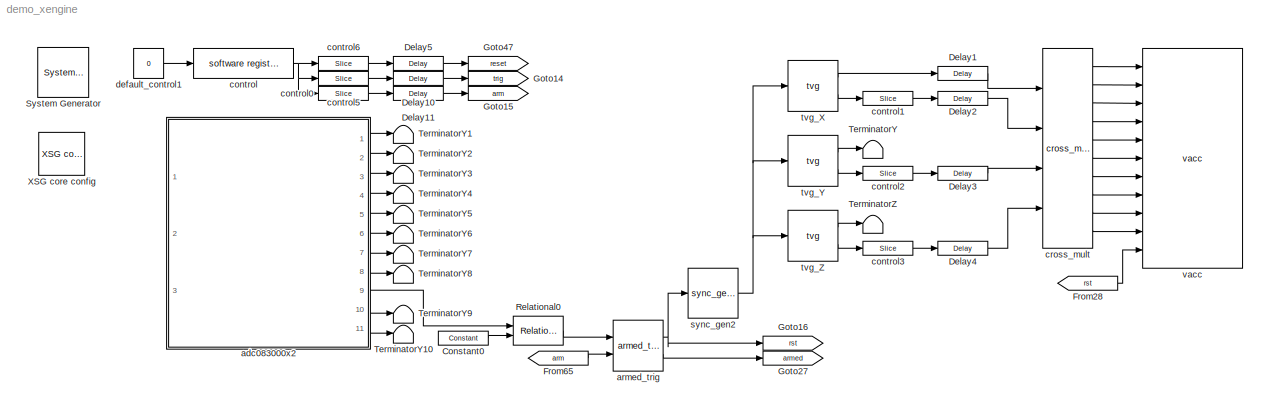
MODEL demo_xengine
KIND model
BLOCK [Reference]  System Generator  REF=xbsIndex_r4/ System Generator
  AttributesFormatString = System\\nGenerator
  FunctionWithSeparateData = off
  Ports = []
  RTWMemSecDataConstants = Inherit from model
  RTWMemSecDataInternal = Inherit from model
  RTWMemSecDataParameters = Inherit from model
  RTWMemSecFuncExecute = Inherit from model
  RTWMemSecFuncInitTerm = Inherit from model
  SID = 1
  ShowPortLabels = FromPortIcon
  SourceBlock = xbsIndex_r4/ System Generator
  SourceType = Xilinx System Generator Block
  SystemSampleTime = -1
  Tag = genX
  UserData = DataTag0
  UserDataPersistent = on
  block_type = sysgen
  block_version = 10.1.3
  clock_wrapper = Clock Enables
  core_generation = According to Block Masks
  dbl_ovrd = According to Block Masks
  dcm_input_clock_period = 100
  deprecated_control = off
  directory = ./demo_xengine/sysgen
  eval_field = 0
  has_advanced_control = 0
  incr_netlist = off
  infoedit = System Generator
  package = ff1136
  part = xc5vsx95t
  run_coregen = off
  sg_icon_stat = 51,50,-1,-1,red,beige,0,07734,right
  sg_mask_display = fprintf('','COMMENT: begin icon graphics');\npatch([0 51 51 0 ],[0 0 50 50 ],[0.93 0.92 0.86]);\npatch([12 4 16 4 12 25 29 33 47 36 25 17 29 17 25 36 47 33 29 25 12 ],[5 13 25 37 45 45 41 45 45 34 45 37 25 13 5 16 5 5 9 5 5 ],[0.6 0.2 0.25]);\nplot([0 51 51 0 0 ],[0 0 50 50 0 ]);\nfprintf('','COMMENT: end icon graphics');\nfprintf('','COMMENT: begin icon text');\nfprintf('','COMMENT: end icon text...<+5ch>
  sggui_pos = -1,-1,-1,-1
  simulink_period = 1
  speed = -1
  synthesis_tool = XST
  sysclk_period = 5
  testbench = off
  trim_vbits = Everywhere in SubSystem
  xilinxfamily = virtex5
BLOCK [Reference] Constant0  REF=xbsIndex_r4/Constant
  Ports = [0, 1]
  SID = 141
  SourceBlock = xbsIndex_r4/Constant
  SourceType = Xilinx Constant Block Block
  arith_type = Unsigned
  bin_pt = 0
  block_type = constant
  block_version = 10.1.3
  carry = CIN
  const = 0
  dbl_ovrd = off
  dsp48_infoedit = The use of this block for DSP48 instructions is deprecated.  Please use the Opmode block.
  equ = P=C
  explicit_period = on
  has_advanced_control = 0
  inp1 = P
  inp2 = PCIN>>17
  n_bits = 4
  opr = +
  opselect = C
  period = 1
  sg_icon_stat = 50,14,0,1,white,blue,0,bf4ddd8b,right,
  sg_list_contents = {'table'=>{'carry'=>'popup(0|1|CIN|~SIGN(P or PCIN)|~SIGN(A*B or A:B)|~SIGND(A*B or A:B))','inp1'=>'popup(0|P|A:B|A*B|C|P+C|A:B+C)','inp2'=>'popup(0|PCIN|P|C|PCIN>>17|P>>17)','opselect'=>'popup(C + A*B|PCIN + A*B|P + A*B|A * B|C + A:B|C - A:B|C|Custom)','userSelections'=>{'carry'=>'CIN','inp1'=>'P','inp2'=>'PCIN>>17','opselect'=>'C'}}}
  sg_mask_display = fprintf('','COMMENT: begin icon graphics');\npatch([0 1 1 0 ],[0 0 1 1 ],[0.77 0.82 0.91]);\npatch([0.42 0.38 0.44 0.38 0.42 0.5 0.52 0.54 0.62 0.56 0.5 0.46 0.52 0.46 0.5 0.56 0.62 0.54 0.52 0.5 0.42 ],[0.142857 0.285714 0.5 0.714286 0.857143 0.857143 0.785714 0.857143 0.857143 0.642857 0.857143 0.714286 0.5 0.285714 0.142857 0.357143 0.142857 0.142857 0.214286 0.142857 0.142857 ],[0.98 0.96 0.92...<+206ch>
  sggui_pos = 95,381,400,346
BLOCK [Reference] Delay1  REF=xbsIndex_r4/Delay
  Ports = [1, 1]
  SID = 144
  SourceBlock = xbsIndex_r4/Delay
  SourceType = Xilinx Delay Block
  block_type = delay
  block_version = 10.1.3
  dbl_ovrd = off
  en = off
  has_advanced_control = 0
  infoedit = Hardware notes: A delay line is a chain, each link of which is an SRL16 followed by a flip-flop.
  latency = 1
  reg_retiming = on
  sg_icon_stat = 50,14,1,1,white,blue,0,07b98262,right,
  sg_mask_display = fprintf('','COMMENT: begin icon graphics');\npatch([0 1 1 0 ],[0 0 1 1 ],[0.77 0.82 0.91]);\npatch([0.42 0.38 0.44 0.38 0.42 0.5 0.52 0.54 0.62 0.56 0.5 0.46 0.52 0.46 0.5 0.56 0.62 0.54 0.52 0.5 0.42 ],[0.142857 0.285714 0.5 0.714286 0.857143 0.857143 0.785714 0.857143 0.857143 0.642857 0.857143 0.714286 0.5 0.285714 0.142857 0.357143 0.142857 0.142857 0.214286 0.142857 0.142857 ],[0.98 0.96 0.92...<+209ch>  <repeated x7 — deduplicated; at blocks: Delay1, Delay10, Delay11, Delay2, Delay3, Delay4, Delay5>
  sggui_pos = 20,20,543,392
  xl_area = [0,0,0,0,0,0,0]
  xl_use_area = off
BLOCK [Reference] Delay10  REF=xbsIndex_r4/Delay
  Ports = [1, 1]
  SID = 104
  SourceBlock = xbsIndex_r4/Delay
  SourceType = Xilinx Delay Block
  block_type = delay
  block_version = 10.1.3
  dbl_ovrd = off
  en = off
  has_advanced_control = 0
  infoedit = Hardware notes: A delay line is a chain, each link of which is an SRL16 followed by a flip-flop.
  latency = 1
  reg_retiming = on
  sg_icon_stat = 50,14,1,1,white,blue,0,07b98262,right,
  sggui_pos = 20,20,543,392
  xl_area = [0,0,0,0,0,0,0]
  xl_use_area = off
BLOCK [Reference] Delay11  REF=xbsIndex_r4/Delay
  Ports = [1, 1]
  SID = 105
  SourceBlock = xbsIndex_r4/Delay
  SourceType = Xilinx Delay Block
  block_type = delay
  block_version = 10.1.3
  dbl_ovrd = off
  en = off
  has_advanced_control = 0
  infoedit = Hardware notes: A delay line is a chain, each link of which is an SRL16 followed by a flip-flop.
  latency = 1
  reg_retiming = on
  sg_icon_stat = 50,14,1,1,white,blue,0,07b98262,right,
  sggui_pos = 20,20,543,392
  xl_area = [0,0,0,0,0,0,0]
  xl_use_area = off
BLOCK [Reference] Delay2  REF=xbsIndex_r4/Delay
  Ports = [1, 1]
  SID = 145
  SourceBlock = xbsIndex_r4/Delay
  SourceType = Xilinx Delay Block
  block_type = delay
  block_version = 10.1.3
  dbl_ovrd = off
  en = off
  has_advanced_control = 0
  infoedit = Hardware notes: A delay line is a chain, each link of which is an SRL16 followed by a flip-flop.
  latency = 1
  reg_retiming = on
  sg_icon_stat = 50,14,1,1,white,blue,0,07b98262,right,
  sggui_pos = 20,20,543,392
  xl_area = [0,0,0,0,0,0,0]
  xl_use_area = off
BLOCK [Reference] Delay3  REF=xbsIndex_r4/Delay
  Ports = [1, 1]
  SID = 146
  SourceBlock = xbsIndex_r4/Delay
  SourceType = Xilinx Delay Block
  block_type = delay
  block_version = 10.1.3
  dbl_ovrd = off
  en = off
  has_advanced_control = 0
  infoedit = Hardware notes: A delay line is a chain, each link of which is an SRL16 followed by a flip-flop.
  latency = 1
  reg_retiming = on
  sg_icon_stat = 50,14,1,1,white,blue,0,07b98262,right,
  sggui_pos = 20,20,543,392
  xl_area = [0,0,0,0,0,0,0]
  xl_use_area = off
BLOCK [Reference] Delay4  REF=xbsIndex_r4/Delay
  Ports = [1, 1]
  SID = 147
  SourceBlock = xbsIndex_r4/Delay
  SourceType = Xilinx Delay Block
  block_type = delay
  block_version = 10.1.3
  dbl_ovrd = off
  en = off
  has_advanced_control = 0
  infoedit = Hardware notes: A delay line is a chain, each link of which is an SRL16 followed by a flip-flop.
  latency = 1
  reg_retiming = on
  sg_icon_stat = 50,14,1,1,white,blue,0,07b98262,right,
  sggui_pos = 20,20,543,392
  xl_area = [0,0,0,0,0,0,0]
  xl_use_area = off
BLOCK [Reference] Delay5  REF=xbsIndex_r4/Delay
  Ports = [1, 1]
  SID = 106
  SourceBlock = xbsIndex_r4/Delay
  SourceType = Xilinx Delay Block
  block_type = delay
  block_version = 10.1.3
  dbl_ovrd = off
  en = off
  has_advanced_control = 0
  infoedit = Hardware notes: A delay line is a chain, each link of which is an SRL16 followed by a flip-flop.
  latency = 1
  reg_retiming = on
  sg_icon_stat = 50,14,1,1,white,blue,0,07b98262,right,
  sggui_pos = 20,20,543,392
  xl_area = [0,0,0,0,0,0,0]
  xl_use_area = off
BLOCK [From] From28
  CloseFcn = tagdialog Close
  GotoTag = rst
  SID = 22
BLOCK [From] From65
  CloseFcn = tagdialog Close
  GotoTag = arm
  SID = 34
BLOCK [Goto] Goto14
  GotoTag = trig
  SID = 114
  TagVisibility = local
BLOCK [Goto] Goto15
  GotoTag = arm
  SID = 117
  TagVisibility = local
BLOCK [Goto] Goto16
  GotoTag = rst
  SID = 126
  TagVisibility = local
BLOCK [Goto] Goto27
  GotoTag = armed
  SID = 53
  TagVisibility = local
BLOCK [Goto] Goto47
  GotoTag = reset
  SID = 115
  TagVisibility = local
BLOCK [Reference] Relational0  REF=xbsIndex_r4/Relational
  Ports = [2, 1]
  SID = 142
  SourceBlock = xbsIndex_r4/Relational
  SourceType = Xilinx Arithmetic Relational Operator Block
  block_type = relational
  block_version = 10.1.3
  dbl_ovrd = off
  en = off
  has_advanced_control = 0
  latency = 1
  mode = a!=b
  sg_icon_stat = 50,29,2,1,white,blue,0,9551bfee,right,
  sg_list_contents = {'table'=>{'mode'=>'popup(a=b|a!=b|a<b|a>b|a<=b|a>=b)','userSelections'=>{'mode'=>'a!=b'}}}
  sg_mask_display = fprintf('','COMMENT: begin icon graphics');\npatch([0 1 1 0 ],[0 0 1 1 ],[0.77 0.82 0.91]);\npatch([0.34 0.24 0.38 0.24 0.34 0.5 0.54 0.58 0.74 0.62 0.5 0.4 0.54 0.4 0.5 0.62 0.74 0.58 0.54 0.5 0.34 ],[0.103448 0.275862 0.517241 0.758621 0.931034 0.931034 0.862069 0.931034 0.931034 0.724138 0.931034 0.758621 0.517241 0.275862 0.103448 0.310345 0.103448 0.103448 0.172414 0.103448 0.103448 ],[0.98 0...<+331ch>
  sggui_pos = 0,0,419,209
  xl_area = [0, 0, 0, 0, 0, 0, 0]
  xl_use_area = off
BLOCK [Terminator] TerminatorY
  SID = 61
BLOCK [Terminator] TerminatorY1
  SID = 130
BLOCK [Terminator] TerminatorY10
  SID = 139
BLOCK [Terminator] TerminatorY2
  SID = 131
BLOCK [Terminator] TerminatorY3
  SID = 132
BLOCK [Terminator] TerminatorY4
  SID = 133
BLOCK [Terminator] TerminatorY5
  SID = 134
BLOCK [Terminator] TerminatorY6
  SID = 135
BLOCK [Terminator] TerminatorY7
  SID = 136
BLOCK [Terminator] TerminatorY8
  SID = 137
BLOCK [Terminator] TerminatorY9
  SID = 138
BLOCK [Terminator] TerminatorZ
  SID = 63
BLOCK [Reference] XSG core config  REF=xps_library/XSG core config  (lib defined in mdl_00b5cec29cd0, mdl_02ab6ecaa3d1, +5 more)
  BEE2_ctrl_clk_src = sys_clk
  BEE2_usr_clk_src = sys_clk
  CORR_clk_src = sys_clk
  FunctionWithSeparateData = off
  Ports = []
  ROACH_clk_src = adc0_clk
  RTWMemSecDataConstants = Inherit from model
  RTWMemSecDataInternal = Inherit from model
  RTWMemSecDataParameters = Inherit from model
  RTWMemSecFuncExecute = Inherit from model
  RTWMemSecFuncInitTerm = Inherit from model
  SID = 64
  ShowPortLabels = FromPortIcon
  SourceBlock = xps_library/XSG core config
  SourceType = xsg core config
  SystemSampleTime = -1
  Tag = xps:xsg
  clk_rate = 325
  clk_src = adc0_clk
  gpio_clk_bit_index = 0
  gpio_clk_io_group = iBOB:sma
  hw_sys = ROACH:sx95t
  iBOB_clk_src = sys_clk
  ibob_linux = off
  mpc_type = powerpc440_ext
  sample_period = 1
  synthesis_tool = XST
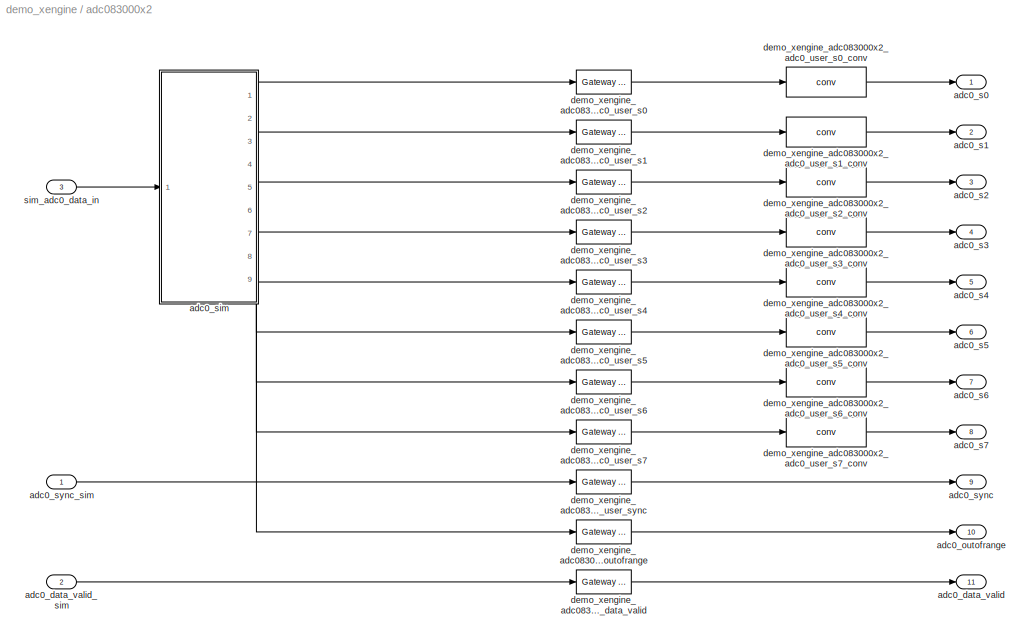
BLOCK [SubSystem] adc083000x2
  AncestorBlock = xps_library/adc083000x2
  FunctionWithSeparateData = off
  MaskCallbackString = ||||||||
  MaskDescription = The ADC block converts analog inputs to digital outputs. \nEvery clock cycle, the inputs are sampled and digitized to \n8 bit binary point numbers in the range of [-1, 1).  \n\nOnline block-specific documentation: http://casper.berkeley.edu/wiki/Adc083000
  MaskDisplay = \n
  MaskEnableString = on,on,on,on,on,on,on,on,on
  MaskHelp = eval('xlWeb([getenv(''MLIB_ROOT''), ''<path>''])')
  MaskHideContents = off
  MaskIconFrame = on
  MaskIconOpaque = on
  MaskIconRotate = none
  MaskIconUnits = autoscale
  MaskInitialization = adc083000_mask;
  MaskPortRotate = default
  MaskPromptString = Use ZD0K0?|Use ZDOK1?|Demux ADCs by 2?|Interleave 2 ADC boards?|Verbose Block Creation?|Add ports for control registers?|ADC clock rate (MHz)|Sample Period|Output Bit Width
  MaskSelfModifiable = on
  MaskStyleString = checkbox,checkbox,checkbox,checkbox,checkbox,checkbox,edit,edit,edit
  MaskToolTipString = on,on,on,on,on,on,on,on,on
  MaskTunableValueString = on,on,on,on,on,on,on,on,on
  MaskType = adc_083000x2
  MaskValueString = on|off|off|off|off|off|1300|1|8
  MaskVariables = use_adc0=@1;use_adc1=@2;demux_adc=@3;clock_sync=@4;verbose=@5;using_ctrl=@6;adc_clk_rate=@7;sample_period=@8;bit_width=@9;
  MaskVisibilityString = on,on,on,on,on,on,on,on,on
  MinAlgLoopOccurrences = off
  Opaque = off
  Ports = [3, 11]
  PropExecContextOutsideSubsystem = off
  RTWSystemCode = Auto
  RequestExecContextInheritance = off
  SID = 129
  Tag = xps:adc083000x2
BLOCK [Outport] adc083000x2/adc0_data_valid
  IconDisplay = Port number
  OutDataType = sfix(16)
  OutScaling = 2^0
  Port = 11
  SID = 63
BLOCK [Inport] adc083000x2/adc0_data_valid_sim
  IconDisplay = Port number
  OutDataType = sfix(16)
  OutScaling = 2^0
  Port = 2
  SID = 2
BLOCK [Outport] adc083000x2/adc0_outofrange
  IconDisplay = Port number
  OutDataType = fixdt(1, 16)
  OutScaling = 2^0
  Port = 10
  SID = 62
BLOCK [Outport] adc083000x2/adc0_s0
  IconDisplay = Port number
  OutDataType = fixdt(1, 16)
  OutScaling = 2^0
  SID = 45
BLOCK [Outport] adc083000x2/adc0_s1
  IconDisplay = Port number
  OutDataType = fixdt(1, 16)
  OutScaling = 2^0
  Port = 2
  SID = 47
BLOCK [Outport] adc083000x2/adc0_s2
  IconDisplay = Port number
  OutDataType = fixdt(1, 16)
  OutScaling = 2^0
  Port = 3
  SID = 49
BLOCK [Outport] adc083000x2/adc0_s3
  IconDisplay = Port number
  OutDataType = fixdt(1, 16)
  OutScaling = 2^0
  Port = 4
  SID = 51
BLOCK [Outport] adc083000x2/adc0_s4
  IconDisplay = Port number
  OutDataType = fixdt(1, 16)
  OutScaling = 2^0
  Port = 5
  SID = 53
BLOCK [Outport] adc083000x2/adc0_s5
  IconDisplay = Port number
  OutDataType = fixdt(1, 16)
  OutScaling = 2^0
  Port = 6
  SID = 55
BLOCK [Outport] adc083000x2/adc0_s6
  IconDisplay = Port number
  OutDataType = fixdt(1, 16)
  OutScaling = 2^0
  Port = 7
  SID = 57
BLOCK [Outport] adc083000x2/adc0_s7
  IconDisplay = Port number
  OutDataType = fixdt(1, 16)
  OutScaling = 2^0
  Port = 8
  SID = 59
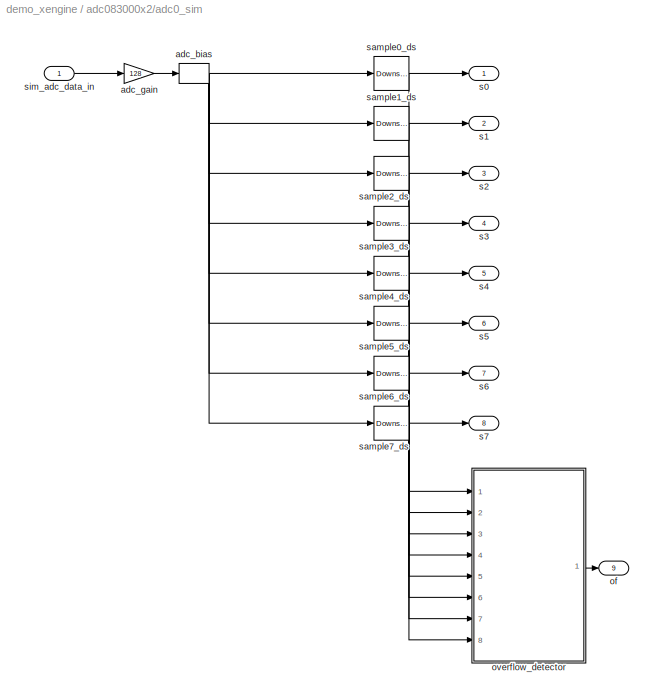
BLOCK [SubSystem] adc083000x2/adc0_sim
  AncestorBlock = xps_library/ADCs/adc_sim
  FunctionWithSeparateData = off
  MaskCallbackString = |
  MaskDescription = This block simulates the behavior of a demuxed ADC, which takes\nas input a waveform and returns digital samples in parallel at\na slower rate.  \n\nThis block is used to simulate the behavior
  MaskEnableString = on,on
  MaskHideContents = off
  MaskIconFrame = on
  MaskIconOpaque = on
  MaskIconRotate = none
  MaskIconUnits = autoscale
  MaskInitialization = adc_sim_init(gcb, ...\n    'nStreams', nStreams, ...\n    'bit_width', bit_width);
  MaskPortRotate = default
  MaskPromptString = Number of Output Streams|Sample Bit Width
  MaskStyleString = edit,edit
  MaskToolTipString = on,on
  MaskTunableValueString = on,on
  MaskType = adc_sim
  MaskValueString = 8|8
  MaskVariables = nStreams=@1;bit_width=@2;
  MaskVisibilityString = on,on
  MinAlgLoopOccurrences = off
  Opaque = off
  Ports = [1, 9]
  PropExecContextOutsideSubsystem = off
  RTWSystemCode = Auto
  RequestExecContextInheritance = off
  SID = 68
BLOCK [Bias] adc083000x2/adc0_sim/adc_bias
  Bias = 128
  SID = 16
BLOCK [Gain] adc083000x2/adc0_sim/adc_gain
  Gain = 128
  OutDataType = sfix(16)
  OutDataTypeMode = Inherit via internal rule
  OutDataTypeStr = Inherit: Inherit via internal rule
  OutScaling = 2^0
  ParamDataTypeStr = Inherit: Inherit via internal rule
  ParameterDataType = sfix(16)
  ParameterDataTypeMode = Inherit via internal rule
  ParameterScaling = 2^0
  SID = 17
  SaturateOnIntegerOverflow = off
BLOCK [Outport] adc083000x2/adc0_sim/of
  IconDisplay = Port number
  OutDataType = sfix(16)
  OutScaling = 2^0
  Port = 9
  SID = 35
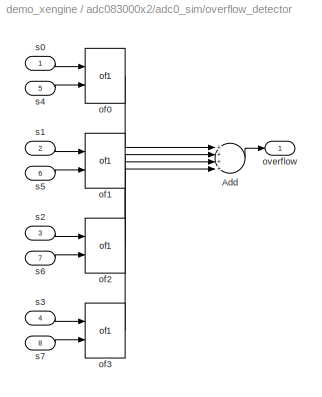
BLOCK [SubSystem] adc083000x2/adc0_sim/overflow_detector
  AncestorBlock = casper_library/Misc/of_detect_bus
  FunctionWithSeparateData = off
  MaskCallbackString = |
  MaskEnableString = on,on
  MaskHideContents = off
  MaskIconFrame = on
  MaskIconOpaque = on
  MaskIconRotate = none
  MaskIconUnits = autoscale
  MaskInitialization = adc_overflow_detector_init(gcb, ...\n    'nStreams', nStreams, ...\n    'bit_width', bit_width);
  MaskPortRotate = default
  MaskPromptString = Number of Streams|Bit Width
  MaskStyleString = edit,edit
  MaskToolTipString = on,on
  MaskTunableValueString = on,on
  MaskType = of_detect_bus
  MaskValueString = 8|8
  MaskVariables = nStreams=@1;bit_width=@2;
  MaskVisibilityString = on,on
  MinAlgLoopOccurrences = off
  Opaque = off
  Ports = [8, 1]
  PropExecContextOutsideSubsystem = off
  RTWSystemCode = Auto
  RequestExecContextInheritance = off
  SID = 18
BLOCK [Sum] adc083000x2/adc0_sim/overflow_detector/Add
  InputSameDT = off
  Inputs = ++++
  OutDataType = fixdt(1, 16)
  OutDataTypeMode = Inherit via internal rule
  OutDataTypeStr = Inherit: Inherit via internal rule
  OutScaling = 2^-10
  Ports = [4, 1]
  SID = 9
  SaturateOnIntegerOverflow = off
BLOCK [Reference] adc083000x2/adc0_sim/overflow_detector/of0  REF=casper_library/Misc/of1  (lib defined in mdl_138b2fc3435f, mdl_4ed325b712b3, +2 more)
  FunctionWithSeparateData = off
  Ports = [2, 1]
  RTWMemSecDataConstants = Inherit from model
  RTWMemSecDataInternal = Inherit from model
  RTWMemSecDataParameters = Inherit from model
  RTWMemSecFuncExecute = Inherit from model
  RTWMemSecFuncInitTerm = Inherit from model
  SID = 10
  ShowPortLabels = FromPortIcon
  SourceBlock = casper_library/Misc/of1
  SourceType = of
  SystemSampleTime = -1
  bit_num = 0
  n_adc_bits = 8
BLOCK [Reference] adc083000x2/adc0_sim/overflow_detector/of1  REF=casper_library/Misc/of1  (lib defined in mdl_138b2fc3435f, mdl_4ed325b712b3, +2 more)
  FunctionWithSeparateData = off
  Ports = [2, 1]
  RTWMemSecDataConstants = Inherit from model
  RTWMemSecDataInternal = Inherit from model
  RTWMemSecDataParameters = Inherit from model
  RTWMemSecFuncExecute = Inherit from model
  RTWMemSecFuncInitTerm = Inherit from model
  SID = 11
  ShowPortLabels = FromPortIcon
  SourceBlock = casper_library/Misc/of1
  SourceType = of
  SystemSampleTime = -1
  bit_num = 0
  n_adc_bits = 8
BLOCK [Reference] adc083000x2/adc0_sim/overflow_detector/of2  REF=casper_library/Misc/of1  (lib defined in mdl_138b2fc3435f, mdl_4ed325b712b3, +2 more)
  FunctionWithSeparateData = off
  Ports = [2, 1]
  RTWMemSecDataConstants = Inherit from model
  RTWMemSecDataInternal = Inherit from model
  RTWMemSecDataParameters = Inherit from model
  RTWMemSecFuncExecute = Inherit from model
  RTWMemSecFuncInitTerm = Inherit from model
  SID = 12
  ShowPortLabels = FromPortIcon
  SourceBlock = casper_library/Misc/of1
  SourceType = of
  SystemSampleTime = -1
  bit_num = 0
  n_adc_bits = 8
BLOCK [Reference] adc083000x2/adc0_sim/overflow_detector/of3  REF=casper_library/Misc/of1  (lib defined in mdl_138b2fc3435f, mdl_4ed325b712b3, +2 more)
  FunctionWithSeparateData = off
  Ports = [2, 1]
  RTWMemSecDataConstants = Inherit from model
  RTWMemSecDataInternal = Inherit from model
  RTWMemSecDataParameters = Inherit from model
  RTWMemSecFuncExecute = Inherit from model
  RTWMemSecFuncInitTerm = Inherit from model
  SID = 13
  ShowPortLabels = FromPortIcon
  SourceBlock = casper_library/Misc/of1
  SourceType = of
  SystemSampleTime = -1
  bit_num = 0
  n_adc_bits = 8
BLOCK [Outport] adc083000x2/adc0_sim/overflow_detector/overflow
  IconDisplay = Port number
  OutDataType = fixdt(1, 16)
  OutScaling = 2^0
  SID = 14
BLOCK [Inport] adc083000x2/adc0_sim/overflow_detector/s0
  IconDisplay = Port number
  OutDataType = fixdt(1, 16)
  OutScaling = 2^0
  SID = 1
BLOCK [Inport] adc083000x2/adc0_sim/overflow_detector/s1
  IconDisplay = Port number
  OutDataType = fixdt(1, 16)
  OutScaling = 2^0
  Port = 2
  SID = 2
BLOCK [Inport] adc083000x2/adc0_sim/overflow_detector/s2
  IconDisplay = Port number
  OutDataType = fixdt(1, 16)
  OutScaling = 2^0
  Port = 3
  SID = 3
BLOCK [Inport] adc083000x2/adc0_sim/overflow_detector/s3
  IconDisplay = Port number
  OutDataType = fixdt(1, 16)
  OutScaling = 2^0
  Port = 4
  SID = 4
BLOCK [Inport] adc083000x2/adc0_sim/overflow_detector/s4
  IconDisplay = Port number
  OutDataType = fixdt(1, 16)
  OutScaling = 2^0
  Port = 5
  SID = 5
BLOCK [Inport] adc083000x2/adc0_sim/overflow_detector/s5
  IconDisplay = Port number
  OutDataType = fixdt(1, 16)
  OutScaling = 2^0
  Port = 6
  SID = 6
BLOCK [Inport] adc083000x2/adc0_sim/overflow_detector/s6
  IconDisplay = Port number
  OutDataType = fixdt(1, 16)
  OutScaling = 2^0
  Port = 7
  SID = 7
BLOCK [Inport] adc083000x2/adc0_sim/overflow_detector/s7
  IconDisplay = Port number
  OutDataType = fixdt(1, 16)
  OutScaling = 2^0
  Port = 8
  SID = 8
BLOCK [Outport] adc083000x2/adc0_sim/s0
  IconDisplay = Port number
  OutDataType = sfix(16)
  OutScaling = 2^0
  SID = 27
BLOCK [Outport] adc083000x2/adc0_sim/s1
  IconDisplay = Port number
  OutDataType = sfix(16)
  OutScaling = 2^0
  Port = 2
  SID = 28
BLOCK [Outport] adc083000x2/adc0_sim/s2
  IconDisplay = Port number
  OutDataType = sfix(16)
  OutScaling = 2^0
  Port = 3
  SID = 29
BLOCK [Outport] adc083000x2/adc0_sim/s3
  IconDisplay = Port number
  OutDataType = sfix(16)
  OutScaling = 2^0
  Port = 4
  SID = 30
BLOCK [Outport] adc083000x2/adc0_sim/s4
  IconDisplay = Port number
  OutDataType = sfix(16)
  OutScaling = 2^0
  Port = 5
  SID = 31
BLOCK [Outport] adc083000x2/adc0_sim/s5
  IconDisplay = Port number
  OutDataType = sfix(16)
  OutScaling = 2^0
  Port = 6
  SID = 32
BLOCK [Outport] adc083000x2/adc0_sim/s6
  IconDisplay = Port number
  OutDataType = sfix(16)
  OutScaling = 2^0
  Port = 7
  SID = 33
BLOCK [Outport] adc083000x2/adc0_sim/s7
  IconDisplay = Port number
  OutDataType = sfix(16)
  OutScaling = 2^0
  Port = 8
  SID = 34
BLOCK [Reference] adc083000x2/adc0_sim/sample0_ds  REF=dspsigops/Downsample
  N = 8
  Ports = [1, 1]
  SID = 19
  SourceBlock = dspsigops/Downsample
  SourceType = Downsample
  fmode = Maintain input frame size
  ic = 0
  phase = 1
  smode = Force single rate
BLOCK [Reference] adc083000x2/adc0_sim/sample1_ds  REF=dspsigops/Downsample
  N = 8
  Ports = [1, 1]
  SID = 20
  SourceBlock = dspsigops/Downsample
  SourceType = Downsample
  fmode = Maintain input frame size
  ic = 0
  phase = 2
  smode = Force single rate
BLOCK [Reference] adc083000x2/adc0_sim/sample2_ds  REF=dspsigops/Downsample
  N = 8
  Ports = [1, 1]
  SID = 21
  SourceBlock = dspsigops/Downsample
  SourceType = Downsample
  fmode = Maintain input frame size
  ic = 0
  phase = 3
  smode = Force single rate
BLOCK [Reference] adc083000x2/adc0_sim/sample3_ds  REF=dspsigops/Downsample
  N = 8
  Ports = [1, 1]
  SID = 22
  SourceBlock = dspsigops/Downsample
  SourceType = Downsample
  fmode = Maintain input frame size
  ic = 0
  phase = 4
  smode = Force single rate
BLOCK [Reference] adc083000x2/adc0_sim/sample4_ds  REF=dspsigops/Downsample
  N = 8
  Ports = [1, 1]
  SID = 23
  SourceBlock = dspsigops/Downsample
  SourceType = Downsample
  fmode = Maintain input frame size
  ic = 0
  phase = 5
  smode = Force single rate
BLOCK [Reference] adc083000x2/adc0_sim/sample5_ds  REF=dspsigops/Downsample
  N = 8
  Ports = [1, 1]
  SID = 24
  SourceBlock = dspsigops/Downsample
  SourceType = Downsample
  fmode = Maintain input frame size
  ic = 0
  phase = 6
  smode = Force single rate
BLOCK [Reference] adc083000x2/adc0_sim/sample6_ds  REF=dspsigops/Downsample
  N = 8
  Ports = [1, 1]
  SID = 25
  SourceBlock = dspsigops/Downsample
  SourceType = Downsample
  fmode = Maintain input frame size
  ic = 0
  phase = 7
  smode = Force single rate
BLOCK [Reference] adc083000x2/adc0_sim/sample7_ds  REF=dspsigops/Downsample
  N = 8
  Ports = [1, 1]
  SID = 26
  SourceBlock = dspsigops/Downsample
  SourceType = Downsample
  fmode = Maintain input frame size
  ic = 0
  phase = 0
  smode = Force single rate
BLOCK [Inport] adc083000x2/adc0_sim/sim_adc_data_in
  IconDisplay = Port number
  OutDataType = sfix(16)
  OutScaling = 2^0
  SID = 15
BLOCK [Outport] adc083000x2/adc0_sync
  IconDisplay = Port number
  OutDataType = sfix(16)
  OutScaling = 2^0
  Port = 9
  SID = 61
BLOCK [Inport] adc083000x2/adc0_sync_sim
  IconDisplay = Port number
  OutDataType = sfix(16)
  OutScaling = 2^0
  SID = 1
BLOCK [Reference] adc083000x2/demo_xengine_adc083000x2_adc0_user_data_valid  REF=xbsIndex_r4/Gateway In
  LOCs = {}
  Ports = [1, 1]
  SID = 88
  SourceBlock = xbsIndex_r4/Gateway In
  SourceType = Xilinx Gateway In Block
  arith_type = Unsigned
  bin_pt = 0
  block_type = gatewayin
  block_version = 11.4
  dbl_ovrd = off
  has_advanced_control = 0
  hdl_port = on
  infoedit = Gateway in block.  Converts inputs of type Simulink integer, double and fixed point to  Xilinx fixed point type.<br><br>Hardware notes:  In hardware these blocks become top level input ports.  <repeated x11 — deduplicated; at blocks: demo_xengine_adc083000x2_adc0_user_data_valid, demo_xengine_adc083000x2_adc0_user_outofrange, demo_xengine_adc083000x2_adc0_user_s0, demo_xengine_adc083000x2_adc0_user_s1, demo_xengine_adc083000x2_adc0_user_s2, demo_xengine_adc083000x2_adc0_user_s3, demo_xengine_adc083000x2_adc0_user_s4, demo_xengine_adc083000x2_adc0_user_s5, demo_xengine_adc083000x2_adc0_user_s6, demo_xengine_adc083000x2_adc0_user_s7, demo_xengine_adc083000x2_adc0_user_sync>
  locs_specified = off
  n_bits = 1
  overflow = Saturate
  period = 1
  quantization = Round  (unbiased: +/- Inf)
  sg_icon_stat = 55,24,1,1,white,yellow,0,00d3666e,right,
  sg_mask_display = fprintf('','COMMENT: begin icon graphics');\npatch([0 1 1 0 ],[0 0 1 1 ],[0.95 0.93 0.65]);\npatch([0.381818 0.309091 0.418182 0.309091 0.381818 0.490909 0.527273 0.563636 0.690909 0.6 0.509091 0.436364 0.545455 0.436364 0.509091 0.6 0.690909 0.563636 0.527273 0.490909 0.381818 ],[0.125 0.291667 0.541667 0.791667 0.958333 0.958333 0.875 0.958333 0.958333 0.75 0.958333 0.791667 0.541667 0.291667 0....<+350ch>  <repeated x11 — deduplicated; at blocks: demo_xengine_adc083000x2_adc0_user_data_valid, demo_xengine_adc083000x2_adc0_user_outofrange, demo_xengine_adc083000x2_adc0_user_s0, demo_xengine_adc083000x2_adc0_user_s1, demo_xengine_adc083000x2_adc0_user_s2, demo_xengine_adc083000x2_adc0_user_s3, demo_xengine_adc083000x2_adc0_user_s4, demo_xengine_adc083000x2_adc0_user_s5, demo_xengine_adc083000x2_adc0_user_s6, demo_xengine_adc083000x2_adc0_user_s7, demo_xengine_adc083000x2_adc0_user_sync>
  sggui_pos = -1,-1,-1,-1
  timing_constraint = None
  xl_area = [0,0,0,0,0,0,0]
  xl_use_area = off
BLOCK [Reference] adc083000x2/demo_xengine_adc083000x2_adc0_user_outofrange  REF=xbsIndex_r4/Gateway In
  LOCs = {}
  Ports = [1, 1]
  SID = 86
  SourceBlock = xbsIndex_r4/Gateway In
  SourceType = Xilinx Gateway In Block
  arith_type = Unsigned
  bin_pt = 0
  block_type = gatewayin
  block_version = 11.4
  dbl_ovrd = off
  has_advanced_control = 0
  hdl_port = on
  locs_specified = off
  n_bits = 4
  overflow = Saturate
  period = 1
  quantization = Round  (unbiased: +/- Inf)
  sg_icon_stat = 55,24,1,1,white,yellow,0,00d3666e,right,
  sggui_pos = -1,-1,-1,-1
  timing_constraint = None
  xl_area = [0,0,0,0,0,0,0]
  xl_use_area = off
BLOCK [Reference] adc083000x2/demo_xengine_adc083000x2_adc0_user_s0  REF=xbsIndex_r4/Gateway In
  LOCs = {}
  Ports = [1, 1]
  SID = 69
  SourceBlock = xbsIndex_r4/Gateway In
  SourceType = Xilinx Gateway In Block
  arith_type = Unsigned
  bin_pt = 0
  block_type = gatewayin
  block_version = 11.4
  dbl_ovrd = off
  has_advanced_control = 0
  hdl_port = on
  locs_specified = off
  n_bits = 8
  overflow = Saturate
  period = 1
  quantization = Round  (unbiased: +/- Inf)
  sg_icon_stat = 55,24,1,1,white,yellow,0,00d3666e,right,
  sggui_pos = -1,-1,-1,-1
  timing_constraint = None
  xl_area = [0,0,0,0,0,0,0]
  xl_use_area = off
BLOCK [Reference] adc083000x2/demo_xengine_adc083000x2_adc0_user_s0_conv  REF=xps_library/ADCs/conv  (lib defined in mdl_00b5cec29cd0, mdl_02ab6ecaa3d1, +5 more)
  FunctionWithSeparateData = off
  Ports = [1, 1]
  RTWMemSecDataConstants = Inherit from model
  RTWMemSecDataInternal = Inherit from model
  RTWMemSecDataParameters = Inherit from model
  RTWMemSecFuncExecute = Inherit from model
  RTWMemSecFuncInitTerm = Inherit from model
  SID = 70
  ShowPortLabels = FromPortIcon
  SourceBlock = xps_library/ADCs/conv
  SourceType = Unknown
  SystemSampleTime = -1
  bit_width = 8
BLOCK [Reference] adc083000x2/demo_xengine_adc083000x2_adc0_user_s1  REF=xbsIndex_r4/Gateway In
  LOCs = {}
  Ports = [1, 1]
  SID = 71
  SourceBlock = xbsIndex_r4/Gateway In
  SourceType = Xilinx Gateway In Block
  arith_type = Unsigned
  bin_pt = 0
  block_type = gatewayin
  block_version = 11.4
  dbl_ovrd = off
  has_advanced_control = 0
  hdl_port = on
  locs_specified = off
  n_bits = 8
  overflow = Saturate
  period = 1
  quantization = Round  (unbiased: +/- Inf)
  sg_icon_stat = 55,24,1,1,white,yellow,0,00d3666e,right,
  sggui_pos = -1,-1,-1,-1
  timing_constraint = None
  xl_area = [0,0,0,0,0,0,0]
  xl_use_area = off
BLOCK [Reference] adc083000x2/demo_xengine_adc083000x2_adc0_user_s1_conv  REF=xps_library/ADCs/conv  (lib defined in mdl_00b5cec29cd0, mdl_02ab6ecaa3d1, +5 more)
  FunctionWithSeparateData = off
  Ports = [1, 1]
  RTWMemSecDataConstants = Inherit from model
  RTWMemSecDataInternal = Inherit from model
  RTWMemSecDataParameters = Inherit from model
  RTWMemSecFuncExecute = Inherit from model
  RTWMemSecFuncInitTerm = Inherit from model
  SID = 72
  ShowPortLabels = FromPortIcon
  SourceBlock = xps_library/ADCs/conv
  SourceType = Unknown
  SystemSampleTime = -1
  bit_width = 8
BLOCK [Reference] adc083000x2/demo_xengine_adc083000x2_adc0_user_s2  REF=xbsIndex_r4/Gateway In
  LOCs = {}
  Ports = [1, 1]
  SID = 73
  SourceBlock = xbsIndex_r4/Gateway In
  SourceType = Xilinx Gateway In Block
  arith_type = Unsigned
  bin_pt = 0
  block_type = gatewayin
  block_version = 11.4
  dbl_ovrd = off
  has_advanced_control = 0
  hdl_port = on
  locs_specified = off
  n_bits = 8
  overflow = Saturate
  period = 1
  quantization = Round  (unbiased: +/- Inf)
  sg_icon_stat = 55,24,1,1,white,yellow,0,00d3666e,right,
  sggui_pos = -1,-1,-1,-1
  timing_constraint = None
  xl_area = [0,0,0,0,0,0,0]
  xl_use_area = off
BLOCK [Reference] adc083000x2/demo_xengine_adc083000x2_adc0_user_s2_conv  REF=xps_library/ADCs/conv  (lib defined in mdl_00b5cec29cd0, mdl_02ab6ecaa3d1, +5 more)
  FunctionWithSeparateData = off
  Ports = [1, 1]
  RTWMemSecDataConstants = Inherit from model
  RTWMemSecDataInternal = Inherit from model
  RTWMemSecDataParameters = Inherit from model
  RTWMemSecFuncExecute = Inherit from model
  RTWMemSecFuncInitTerm = Inherit from model
  SID = 74
  ShowPortLabels = FromPortIcon
  SourceBlock = xps_library/ADCs/conv
  SourceType = Unknown
  SystemSampleTime = -1
  bit_width = 8
BLOCK [Reference] adc083000x2/demo_xengine_adc083000x2_adc0_user_s3  REF=xbsIndex_r4/Gateway In
  LOCs = {}
  Ports = [1, 1]
  SID = 75
  SourceBlock = xbsIndex_r4/Gateway In
  SourceType = Xilinx Gateway In Block
  arith_type = Unsigned
  bin_pt = 0
  block_type = gatewayin
  block_version = 11.4
  dbl_ovrd = off
  has_advanced_control = 0
  hdl_port = on
  locs_specified = off
  n_bits = 8
  overflow = Saturate
  period = 1
  quantization = Round  (unbiased: +/- Inf)
  sg_icon_stat = 55,24,1,1,white,yellow,0,00d3666e,right,
  sggui_pos = -1,-1,-1,-1
  timing_constraint = None
  xl_area = [0,0,0,0,0,0,0]
  xl_use_area = off
BLOCK [Reference] adc083000x2/demo_xengine_adc083000x2_adc0_user_s3_conv  REF=xps_library/ADCs/conv  (lib defined in mdl_00b5cec29cd0, mdl_02ab6ecaa3d1, +5 more)
  FunctionWithSeparateData = off
  Ports = [1, 1]
  RTWMemSecDataConstants = Inherit from model
  RTWMemSecDataInternal = Inherit from model
  RTWMemSecDataParameters = Inherit from model
  RTWMemSecFuncExecute = Inherit from model
  RTWMemSecFuncInitTerm = Inherit from model
  SID = 76
  ShowPortLabels = FromPortIcon
  SourceBlock = xps_library/ADCs/conv
  SourceType = Unknown
  SystemSampleTime = -1
  bit_width = 8
BLOCK [Reference] adc083000x2/demo_xengine_adc083000x2_adc0_user_s4  REF=xbsIndex_r4/Gateway In
  LOCs = {}
  Ports = [1, 1]
  SID = 77
  SourceBlock = xbsIndex_r4/Gateway In
  SourceType = Xilinx Gateway In Block
  arith_type = Unsigned
  bin_pt = 0
  block_type = gatewayin
  block_version = 11.4
  dbl_ovrd = off
  has_advanced_control = 0
  hdl_port = on
  locs_specified = off
  n_bits = 8
  overflow = Saturate
  period = 1
  quantization = Round  (unbiased: +/- Inf)
  sg_icon_stat = 55,24,1,1,white,yellow,0,00d3666e,right,
  sggui_pos = -1,-1,-1,-1
  timing_constraint = None
  xl_area = [0,0,0,0,0,0,0]
  xl_use_area = off
BLOCK [Reference] adc083000x2/demo_xengine_adc083000x2_adc0_user_s4_conv  REF=xps_library/ADCs/conv  (lib defined in mdl_00b5cec29cd0, mdl_02ab6ecaa3d1, +5 more)
  FunctionWithSeparateData = off
  Ports = [1, 1]
  RTWMemSecDataConstants = Inherit from model
  RTWMemSecDataInternal = Inherit from model
  RTWMemSecDataParameters = Inherit from model
  RTWMemSecFuncExecute = Inherit from model
  RTWMemSecFuncInitTerm = Inherit from model
  SID = 78
  ShowPortLabels = FromPortIcon
  SourceBlock = xps_library/ADCs/conv
  SourceType = Unknown
  SystemSampleTime = -1
  bit_width = 8
BLOCK [Reference] adc083000x2/demo_xengine_adc083000x2_adc0_user_s5  REF=xbsIndex_r4/Gateway In
  LOCs = {}
  Ports = [1, 1]
  SID = 79
  SourceBlock = xbsIndex_r4/Gateway In
  SourceType = Xilinx Gateway In Block
  arith_type = Unsigned
  bin_pt = 0
  block_type = gatewayin
  block_version = 11.4
  dbl_ovrd = off
  has_advanced_control = 0
  hdl_port = on
  locs_specified = off
  n_bits = 8
  overflow = Saturate
  period = 1
  quantization = Round  (unbiased: +/- Inf)
  sg_icon_stat = 55,24,1,1,white,yellow,0,00d3666e,right,
  sggui_pos = -1,-1,-1,-1
  timing_constraint = None
  xl_area = [0,0,0,0,0,0,0]
  xl_use_area = off
BLOCK [Reference] adc083000x2/demo_xengine_adc083000x2_adc0_user_s5_conv  REF=xps_library/ADCs/conv  (lib defined in mdl_00b5cec29cd0, mdl_02ab6ecaa3d1, +5 more)
  FunctionWithSeparateData = off
  Ports = [1, 1]
  RTWMemSecDataConstants = Inherit from model
  RTWMemSecDataInternal = Inherit from model
  RTWMemSecDataParameters = Inherit from model
  RTWMemSecFuncExecute = Inherit from model
  RTWMemSecFuncInitTerm = Inherit from model
  SID = 80
  ShowPortLabels = FromPortIcon
  SourceBlock = xps_library/ADCs/conv
  SourceType = Unknown
  SystemSampleTime = -1
  bit_width = 8
BLOCK [Reference] adc083000x2/demo_xengine_adc083000x2_adc0_user_s6  REF=xbsIndex_r4/Gateway In
  LOCs = {}
  Ports = [1, 1]
  SID = 81
  SourceBlock = xbsIndex_r4/Gateway In
  SourceType = Xilinx Gateway In Block
  arith_type = Unsigned
  bin_pt = 0
  block_type = gatewayin
  block_version = 11.4
  dbl_ovrd = off
  has_advanced_control = 0
  hdl_port = on
  locs_specified = off
  n_bits = 8
  overflow = Saturate
  period = 1
  quantization = Round  (unbiased: +/- Inf)
  sg_icon_stat = 55,24,1,1,white,yellow,0,00d3666e,right,
  sggui_pos = -1,-1,-1,-1
  timing_constraint = None
  xl_area = [0,0,0,0,0,0,0]
  xl_use_area = off
BLOCK [Reference] adc083000x2/demo_xengine_adc083000x2_adc0_user_s6_conv  REF=xps_library/ADCs/conv  (lib defined in mdl_00b5cec29cd0, mdl_02ab6ecaa3d1, +5 more)
  FunctionWithSeparateData = off
  Ports = [1, 1]
  RTWMemSecDataConstants = Inherit from model
  RTWMemSecDataInternal = Inherit from model
  RTWMemSecDataParameters = Inherit from model
  RTWMemSecFuncExecute = Inherit from model
  RTWMemSecFuncInitTerm = Inherit from model
  SID = 82
  ShowPortLabels = FromPortIcon
  SourceBlock = xps_library/ADCs/conv
  SourceType = Unknown
  SystemSampleTime = -1
  bit_width = 8
BLOCK [Reference] adc083000x2/demo_xengine_adc083000x2_adc0_user_s7  REF=xbsIndex_r4/Gateway In
  LOCs = {}
  Ports = [1, 1]
  SID = 83
  SourceBlock = xbsIndex_r4/Gateway In
  SourceType = Xilinx Gateway In Block
  arith_type = Unsigned
  bin_pt = 0
  block_type = gatewayin
  block_version = 11.4
  dbl_ovrd = off
  has_advanced_control = 0
  hdl_port = on
  locs_specified = off
  n_bits = 8
  overflow = Saturate
  period = 1
  quantization = Round  (unbiased: +/- Inf)
  sg_icon_stat = 55,24,1,1,white,yellow,0,00d3666e,right,
  sggui_pos = -1,-1,-1,-1
  timing_constraint = None
  xl_area = [0,0,0,0,0,0,0]
  xl_use_area = off
BLOCK [Reference] adc083000x2/demo_xengine_adc083000x2_adc0_user_s7_conv  REF=xps_library/ADCs/conv  (lib defined in mdl_00b5cec29cd0, mdl_02ab6ecaa3d1, +5 more)
  FunctionWithSeparateData = off
  Ports = [1, 1]
  RTWMemSecDataConstants = Inherit from model
  RTWMemSecDataInternal = Inherit from model
  RTWMemSecDataParameters = Inherit from model
  RTWMemSecFuncExecute = Inherit from model
  RTWMemSecFuncInitTerm = Inherit from model
  SID = 84
  ShowPortLabels = FromPortIcon
  SourceBlock = xps_library/ADCs/conv
  SourceType = Unknown
  SystemSampleTime = -1
  bit_width = 8
BLOCK [Reference] adc083000x2/demo_xengine_adc083000x2_adc0_user_sync  REF=xbsIndex_r4/Gateway In
  LOCs = {}
  Ports = [1, 1]
  SID = 85
  SourceBlock = xbsIndex_r4/Gateway In
  SourceType = Xilinx Gateway In Block
  arith_type = Unsigned
  bin_pt = 0
  block_type = gatewayin
  block_version = 11.4
  dbl_ovrd = off
  has_advanced_control = 0
  hdl_port = on
  locs_specified = off
  n_bits = 4
  overflow = Saturate
  period = 1
  quantization = Round  (unbiased: +/- Inf)
  sg_icon_stat = 55,24,1,1,white,yellow,0,00d3666e,right,
  sggui_pos = -1,-1,-1,-1
  timing_constraint = None
  xl_area = [0,0,0,0,0,0,0]
  xl_use_area = off
BLOCK [Inport] adc083000x2/sim_adc0_data_in
  IconDisplay = Port number
  OutDataType = fixdt(1, 16)
  OutScaling = 2^0
  Port = 3
  SID = 67
BLOCK [Reference] armed_trig  REF=isi_correlator_lib/armed_trig  (lib defined in mdl_4b72aa53f299)
  FunctionWithSeparateData = off
  Ports = [2, 2]
  RTWMemSecDataConstants = Inherit from model
  RTWMemSecDataInternal = Inherit from model
  RTWMemSecDataParameters = Inherit from model
  RTWMemSecFuncExecute = Inherit from model
  RTWMemSecFuncInitTerm = Inherit from model
  SID = 65
  ShowPortLabels = FromPortIcon
  SourceBlock = isi_correlator_lib/armed_trig
  SourceType = SubSystem
  SystemSampleTime = -1
BLOCK [Reference] control  REF=xps_library/software register  (lib defined in mdl_00b5cec29cd0, mdl_02ab6ecaa3d1, +5 more)
  FunctionWithSeparateData = off
  Ports = [1, 1]
  RTWMemSecDataConstants = Inherit from model
  RTWMemSecDataInternal = Inherit from model
  RTWMemSecDataParameters = Inherit from model
  RTWMemSecFuncExecute = Inherit from model
  RTWMemSecFuncInitTerm = Inherit from model
  SID = 119
  ShowPortLabels = FromPortIcon
  SourceBlock = xps_library/software register
  SystemSampleTime = -1
  Tag = xps:sw_reg
  arith_type = Unsigned
  bin_pt = 0
  bitwidth = 32
  gw_name = demo_xengine_control_user_data_out
  io_dir = From Processor
  sample_period = 1
BLOCK [Reference] control0  REF=xbsIndex_r4/Slice
  Ports = [1, 1]
  SID = 120
  SourceBlock = xbsIndex_r4/Slice
  SourceType = Xilinx Bit Slice Extractor Block
  base0 = LSB of Input
  base1 = MSB of Input
  bit0 = 0
  bit1 = 0
  block_type = slice
  block_version = 10.1.3
  boolean_output = on
  dbl_ovrd = off
  has_advanced_control = 0
  infoedit = Extracts a given range of bits from each input sample and presents it at the output.  The output type is ordinarily unsigned with binary point at zero, but can be Boolean when the slice is one bit wide.<P><P>Hardware notes: In hardware this block costs nothing.  <repeated x3 — deduplicated; at blocks: control0, control5, control6>
  mode = Lower Bit Location + Width
  nbits = 1
  sg_icon_stat = 50,14,1,1,white,blue,0,1fd851a7,right,
  sg_mask_display = fprintf('','COMMENT: begin icon graphics');\npatch([0 1 1 0 ],[0 0 1 1 ],[0.77 0.82 0.91]);\npatch([0.42 0.38 0.44 0.38 0.42 0.5 0.52 0.54 0.62 0.56 0.5 0.46 0.52 0.46 0.5 0.56 0.62 0.54 0.52 0.5 0.42 ],[0.142857 0.285714 0.5 0.714286 0.857143 0.857143 0.785714 0.857143 0.857143 0.642857 0.857143 0.714286 0.5 0.285714 0.142857 0.357143 0.142857 0.142857 0.214286 0.142857 0.142857 ],[0.98 0.96 0.92...<+210ch>  <repeated x6 — deduplicated; at blocks: control0, control1, control2, control3, control5, control6>
  sggui_pos = 20,20,449,376
BLOCK [Reference] control1  REF=xbsIndex_r4/Slice
  Ports = [1, 1]
  SID = 98
  SourceBlock = xbsIndex_r4/Slice
  SourceType = Xilinx Bit Slice Extractor Block
  base0 = LSB of Input
  base1 = MSB of Input
  bit0 = 0
  bit1 = 0
  block_type = slice
  block_version = 10.1.3
  boolean_output = off
  dbl_ovrd = off
  has_advanced_control = 0
  infoedit = Extracts a given range of bits from each input sample and presents it at the output.  The output type is ordinarily unsigned with binary point at zero, but can be Boolean when the slice is one bit wide.<br><br>Hardware notes: In hardware this block costs nothing.  <repeated x3 — deduplicated; at blocks: control1, control2, control3>
  mode = Lower Bit Location + Width
  nbits = 8
  sg_icon_stat = 50,14,1,1,white,blue,0,1fd851a7,right,
  sggui_pos = 20,20,631,621
BLOCK [Reference] control2  REF=xbsIndex_r4/Slice
  Ports = [1, 1]
  SID = 99
  SourceBlock = xbsIndex_r4/Slice
  SourceType = Xilinx Bit Slice Extractor Block
  base0 = LSB of Input
  base1 = MSB of Input
  bit0 = 0
  bit1 = 0
  block_type = slice
  block_version = 10.1.3
  boolean_output = off
  dbl_ovrd = off
  has_advanced_control = 0
  mode = Lower Bit Location + Width
  nbits = 8
  sg_icon_stat = 50,14,1,1,white,blue,0,1fd851a7,right,
  sggui_pos = 20,20,631,621
BLOCK [Reference] control3  REF=xbsIndex_r4/Slice
  Ports = [1, 1]
  SID = 100
  SourceBlock = xbsIndex_r4/Slice
  SourceType = Xilinx Bit Slice Extractor Block
  base0 = LSB of Input
  base1 = MSB of Input
  bit0 = 0
  bit1 = 0
  block_type = slice
  block_version = 10.1.3
  boolean_output = off
  dbl_ovrd = off
  has_advanced_control = 0
  mode = Lower Bit Location + Width
  nbits = 8
  sg_icon_stat = 50,14,1,1,white,blue,0,1fd851a7,right,
  sggui_pos = 20,20,631,621
BLOCK [Reference] control5  REF=xbsIndex_r4/Slice
  Ports = [1, 1]
  SID = 121
  SourceBlock = xbsIndex_r4/Slice
  SourceType = Xilinx Bit Slice Extractor Block
  base0 = LSB of Input
  base1 = MSB of Input
  bit0 = 1
  bit1 = 0
  block_type = slice
  block_version = 10.1.3
  boolean_output = on
  dbl_ovrd = off
  has_advanced_control = 0
  mode = Lower Bit Location + Width
  nbits = 1
  sg_icon_stat = 50,14,1,1,white,blue,0,1fd851a7,right,
  sggui_pos = 0,0,537,482
BLOCK [Reference] control6  REF=xbsIndex_r4/Slice
  Ports = [1, 1]
  SID = 122
  SourceBlock = xbsIndex_r4/Slice
  SourceType = Xilinx Bit Slice Extractor Block
  base0 = LSB of Input
  base1 = MSB of Input
  bit0 = 2
  bit1 = 0
  block_type = slice
  block_version = 10.1.3
  boolean_output = on
  dbl_ovrd = off
  has_advanced_control = 0
  mode = Lower Bit Location + Width
  nbits = 1
  sg_icon_stat = 50,14,1,1,white,blue,0,1fd851a7,right,
  sggui_pos = 0,0,537,482
BLOCK [Reference] cross_mult  REF=isi_correlator_lib/cross_mult  (lib defined in mdl_4b72aa53f299)
  FunctionWithSeparateData = off
  Ports = [4, 10]
  RTWMemSecDataConstants = Inherit from model
  RTWMemSecDataInternal = Inherit from model
  RTWMemSecDataParameters = Inherit from model
  RTWMemSecFuncExecute = Inherit from model
  RTWMemSecFuncInitTerm = Inherit from model
  SID = 75
  ShowPortLabels = FromPortIcon
  SourceBlock = isi_correlator_lib/cross_mult
  SystemSampleTime = -1
  add_latency = 2
  in_bin_point = 3
  in_bit_width = 4
  mult_latency = 3
  out_bin_point = 6
  out_bit_width = 8
BLOCK [Constant] default_control1
  OutDataType = sfix(16)
  OutScaling = 2^0
  SID = 124
  SampleTime = 1
  Value = 0
BLOCK [Reference] sync_gen2  REF=isi_correlator_lib/sync_gen2  (lib defined in mdl_4b72aa53f299)
  FunctionWithSeparateData = off
  Ports = [1, 1]
  RTWMemSecDataConstants = Inherit from model
  RTWMemSecDataInternal = Inherit from model
  RTWMemSecDataParameters = Inherit from model
  RTWMemSecFuncExecute = Inherit from model
  RTWMemSecFuncInitTerm = Inherit from model
  SID = 83
  ShowPortLabels = FromPortIcon
  SourceBlock = isi_correlator_lib/sync_gen2
  SourceType = sync_gen2
  SystemSampleTime = -1
  UserData = DataTag1
  UserDataPersistent = on
BLOCK [Reference] tvg_X  REF=isi_correlator_lib/tvg  (lib defined in mdl_4b72aa53f299)
  FunctionWithSeparateData = off
  Ports = [1, 2]
  RTWMemSecDataConstants = Inherit from model
  RTWMemSecDataInternal = Inherit from model
  RTWMemSecDataParameters = Inherit from model
  RTWMemSecFuncExecute = Inherit from model
  RTWMemSecFuncInitTerm = Inherit from model
  SID = 84
  ShowPortLabels = FromPortIcon
  SourceBlock = isi_correlator_lib/tvg
  SystemSampleTime = -1
  addr_width = 11
BLOCK [Reference] tvg_Y  REF=isi_correlator_lib/tvg  (lib defined in mdl_4b72aa53f299)
  FunctionWithSeparateData = off
  Ports = [1, 2]
  RTWMemSecDataConstants = Inherit from model
  RTWMemSecDataInternal = Inherit from model
  RTWMemSecDataParameters = Inherit from model
  RTWMemSecFuncExecute = Inherit from model
  RTWMemSecFuncInitTerm = Inherit from model
  SID = 85
  ShowPortLabels = FromPortIcon
  SourceBlock = isi_correlator_lib/tvg
  SystemSampleTime = -1
  addr_width = 11
BLOCK [Reference] tvg_Z  REF=isi_correlator_lib/tvg  (lib defined in mdl_4b72aa53f299)
  FunctionWithSeparateData = off
  Ports = [1, 2]
  RTWMemSecDataConstants = Inherit from model
  RTWMemSecDataInternal = Inherit from model
  RTWMemSecDataParameters = Inherit from model
  RTWMemSecFuncExecute = Inherit from model
  RTWMemSecFuncInitTerm = Inherit from model
  SID = 86
  ShowPortLabels = FromPortIcon
  SourceBlock = isi_correlator_lib/tvg
  SystemSampleTime = -1
  addr_width = 11
BLOCK [Reference] vacc  REF=isi_correlator_lib/vacc  (lib defined in mdl_4b72aa53f299)
  FunctionWithSeparateData = off
  Ports = [11]
  RTWMemSecDataConstants = Inherit from model
  RTWMemSecDataInternal = Inherit from model
  RTWMemSecDataParameters = Inherit from model
  RTWMemSecFuncExecute = Inherit from model
  RTWMemSecFuncInitTerm = Inherit from model
  SID = 127
  ShowPortLabels = FromPortIcon
  SourceBlock = isi_correlator_lib/vacc
  SystemSampleTime = -1
  fanin_latency = 3
  out_bin_point = 6
  out_bit_width = 32
  vector_length = 8
LINE Constant0:1 -> Relational0:2
LINE Delay10:1 -> Goto14:1
LINE Delay11:1 -> Goto15:1
LINE Delay1:1 -> cross_mult:1
LINE Delay2:1 -> cross_mult:2
LINE Delay3:1 -> cross_mult:3
LINE Delay4:1 -> cross_mult:4
LINE Delay5:1 -> Goto47:1
LINE From28:1 -> vacc:11
LINE From65:1 -> armed_trig:2
LINE Relational0:1 -> armed_trig:1
LINE adc083000x2/adc0_data_valid_sim:1 -> adc083000x2/demo_xengine_adc083000x2_adc0_user_data_valid:1
NET adc083000x2/adc0_sim/adc_bias:1 -> adc083000x2/adc0_sim/sample0_ds:1, adc083000x2/adc0_sim/sample1_ds:1, adc083000x2/adc0_sim/sample2_ds:1, adc083000x2/adc0_sim/sample3_ds:1, adc083000x2/adc0_sim/sample4_ds:1, adc083000x2/adc0_sim/sample5_ds:1, adc083000x2/adc0_sim/sample6_ds:1, adc083000x2/adc0_sim/sample7_ds:1
LINE adc083000x2/adc0_sim/adc_gain:1 -> adc083000x2/adc0_sim/adc_bias:1
LINE adc083000x2/adc0_sim/overflow_detector/Add:1 -> adc083000x2/adc0_sim/overflow_detector/overflow:1
LINE adc083000x2/adc0_sim/overflow_detector/of0:1 -> adc083000x2/adc0_sim/overflow_detector/Add:1
LINE adc083000x2/adc0_sim/overflow_detector/of1:1 -> adc083000x2/adc0_sim/overflow_detector/Add:2
LINE adc083000x2/adc0_sim/overflow_detector/of2:1 -> adc083000x2/adc0_sim/overflow_detector/Add:3
LINE adc083000x2/adc0_sim/overflow_detector/of3:1 -> adc083000x2/adc0_sim/overflow_detector/Add:4
LINE adc083000x2/adc0_sim/overflow_detector/s0:1 -> adc083000x2/adc0_sim/overflow_detector/of0:1
LINE adc083000x2/adc0_sim/overflow_detector/s1:1 -> adc083000x2/adc0_sim/overflow_detector/of1:1
LINE adc083000x2/adc0_sim/overflow_detector/s2:1 -> adc083000x2/adc0_sim/overflow_detector/of2:1
LINE adc083000x2/adc0_sim/overflow_detector/s3:1 -> adc083000x2/adc0_sim/overflow_detector/of3:1
LINE adc083000x2/adc0_sim/overflow_detector/s4:1 -> adc083000x2/adc0_sim/overflow_detector/of0:2
LINE adc083000x2/adc0_sim/overflow_detector/s5:1 -> adc083000x2/adc0_sim/overflow_detector/of1:2
LINE adc083000x2/adc0_sim/overflow_detector/s6:1 -> adc083000x2/adc0_sim/overflow_detector/of2:2
LINE adc083000x2/adc0_sim/overflow_detector/s7:1 -> adc083000x2/adc0_sim/overflow_detector/of3:2
LINE adc083000x2/adc0_sim/overflow_detector:1 -> adc083000x2/adc0_sim/of:1
NET adc083000x2/adc0_sim/sample0_ds:1 -> adc083000x2/adc0_sim/overflow_detector:1, adc083000x2/adc0_sim/s0:1
NET adc083000x2/adc0_sim/sample1_ds:1 -> adc083000x2/adc0_sim/overflow_detector:2, adc083000x2/adc0_sim/s1:1
NET adc083000x2/adc0_sim/sample2_ds:1 -> adc083000x2/adc0_sim/overflow_detector:3, adc083000x2/adc0_sim/s2:1
NET adc083000x2/adc0_sim/sample3_ds:1 -> adc083000x2/adc0_sim/overflow_detector:4, adc083000x2/adc0_sim/s3:1
NET adc083000x2/adc0_sim/sample4_ds:1 -> adc083000x2/adc0_sim/overflow_detector:5, adc083000x2/adc0_sim/s4:1
NET adc083000x2/adc0_sim/sample5_ds:1 -> adc083000x2/adc0_sim/overflow_detector:6, adc083000x2/adc0_sim/s5:1
NET adc083000x2/adc0_sim/sample6_ds:1 -> adc083000x2/adc0_sim/overflow_detector:7, adc083000x2/adc0_sim/s6:1
NET adc083000x2/adc0_sim/sample7_ds:1 -> adc083000x2/adc0_sim/overflow_detector:8, adc083000x2/adc0_sim/s7:1
LINE adc083000x2/adc0_sim/sim_adc_data_in:1 -> adc083000x2/adc0_sim/adc_gain:1
LINE adc083000x2/adc0_sim:1 -> adc083000x2/demo_xengine_adc083000x2_adc0_user_s0:1
LINE adc083000x2/adc0_sim:2 -> adc083000x2/demo_xengine_adc083000x2_adc0_user_s1:1
LINE adc083000x2/adc0_sim:3 -> adc083000x2/demo_xengine_adc083000x2_adc0_user_s2:1
LINE adc083000x2/adc0_sim:4 -> adc083000x2/demo_xengine_adc083000x2_adc0_user_s3:1
LINE adc083000x2/adc0_sim:5 -> adc083000x2/demo_xengine_adc083000x2_adc0_user_s4:1
LINE adc083000x2/adc0_sim:6 -> adc083000x2/demo_xengine_adc083000x2_adc0_user_s5:1
LINE adc083000x2/adc0_sim:7 -> adc083000x2/demo_xengine_adc083000x2_adc0_user_s6:1
LINE adc083000x2/adc0_sim:8 -> adc083000x2/demo_xengine_adc083000x2_adc0_user_s7:1
LINE adc083000x2/adc0_sim:9 -> adc083000x2/demo_xengine_adc083000x2_adc0_user_outofrange:1
LINE adc083000x2/adc0_sync_sim:1 -> adc083000x2/demo_xengine_adc083000x2_adc0_user_sync:1
LINE adc083000x2/demo_xengine_adc083000x2_adc0_user_data_valid:1 -> adc083000x2/adc0_data_valid:1
LINE adc083000x2/demo_xengine_adc083000x2_adc0_user_outofrange:1 -> adc083000x2/adc0_outofrange:1
LINE adc083000x2/demo_xengine_adc083000x2_adc0_user_s0:1 -> adc083000x2/demo_xengine_adc083000x2_adc0_user_s0_conv:1
LINE adc083000x2/demo_xengine_adc083000x2_adc0_user_s0_conv:1 -> adc083000x2/adc0_s0:1
LINE adc083000x2/demo_xengine_adc083000x2_adc0_user_s1:1 -> adc083000x2/demo_xengine_adc083000x2_adc0_user_s1_conv:1
LINE adc083000x2/demo_xengine_adc083000x2_adc0_user_s1_conv:1 -> adc083000x2/adc0_s1:1
LINE adc083000x2/demo_xengine_adc083000x2_adc0_user_s2:1 -> adc083000x2/demo_xengine_adc083000x2_adc0_user_s2_conv:1
LINE adc083000x2/demo_xengine_adc083000x2_adc0_user_s2_conv:1 -> adc083000x2/adc0_s2:1
LINE adc083000x2/demo_xengine_adc083000x2_adc0_user_s3:1 -> adc083000x2/demo_xengine_adc083000x2_adc0_user_s3_conv:1
LINE adc083000x2/demo_xengine_adc083000x2_adc0_user_s3_conv:1 -> adc083000x2/adc0_s3:1
LINE adc083000x2/demo_xengine_adc083000x2_adc0_user_s4:1 -> adc083000x2/demo_xengine_adc083000x2_adc0_user_s4_conv:1
LINE adc083000x2/demo_xengine_adc083000x2_adc0_user_s4_conv:1 -> adc083000x2/adc0_s4:1
LINE adc083000x2/demo_xengine_adc083000x2_adc0_user_s5:1 -> adc083000x2/demo_xengine_adc083000x2_adc0_user_s5_conv:1
LINE adc083000x2/demo_xengine_adc083000x2_adc0_user_s5_conv:1 -> adc083000x2/adc0_s5:1
LINE adc083000x2/demo_xengine_adc083000x2_adc0_user_s6:1 -> adc083000x2/demo_xengine_adc083000x2_adc0_user_s6_conv:1
LINE adc083000x2/demo_xengine_adc083000x2_adc0_user_s6_conv:1 -> adc083000x2/adc0_s6:1
LINE adc083000x2/demo_xengine_adc083000x2_adc0_user_s7:1 -> adc083000x2/demo_xengine_adc083000x2_adc0_user_s7_conv:1
LINE adc083000x2/demo_xengine_adc083000x2_adc0_user_s7_conv:1 -> adc083000x2/adc0_s7:1
LINE adc083000x2/demo_xengine_adc083000x2_adc0_user_sync:1 -> adc083000x2/adc0_sync:1
LINE adc083000x2/sim_adc0_data_in:1 -> adc083000x2/adc0_sim:1
LINE adc083000x2:1 -> TerminatorY1:1
LINE adc083000x2:10 -> TerminatorY9:1
LINE adc083000x2:11 -> TerminatorY10:1
LINE adc083000x2:2 -> TerminatorY2:1
LINE adc083000x2:3 -> TerminatorY3:1
LINE adc083000x2:4 -> TerminatorY4:1
LINE adc083000x2:5 -> TerminatorY5:1
LINE adc083000x2:6 -> TerminatorY6:1
LINE adc083000x2:7 -> TerminatorY7:1
LINE adc083000x2:8 -> TerminatorY8:1
LINE adc083000x2:9 -> Relational0:1
NET armed_trig:1 -> Goto16:1, sync_gen2:1
LINE armed_trig:2 -> Goto27:1
LINE control0:1 -> Delay11:1
LINE control1:1 -> Delay2:1
LINE control2:1 -> Delay3:1
LINE control3:1 -> Delay4:1
LINE control5:1 -> Delay10:1
LINE control6:1 -> Delay5:1
NET control:1 -> control0:1, control5:1, control6:1
LINE cross_mult:1 -> vacc:1
LINE cross_mult:10 -> vacc:10
LINE cross_mult:2 -> vacc:2
LINE cross_mult:3 -> vacc:3
LINE cross_mult:4 -> vacc:4
LINE cross_mult:5 -> vacc:5
LINE cross_mult:6 -> vacc:6
LINE cross_mult:7 -> vacc:7
LINE cross_mult:8 -> vacc:8
LINE cross_mult:9 -> vacc:9
LINE default_control1:1 -> control:1
NET sync_gen2:1 -> tvg_X:1, tvg_Y:1, tvg_Z:1
LINE tvg_X:1 -> Delay1:1
LINE tvg_X:2 -> control1:1
LINE tvg_Y:1 -> TerminatorY:1
LINE tvg_Y:2 -> control2:1
LINE tvg_Z:1 -> TerminatorZ:1
LINE tvg_Z:2 -> control3:1
note: NET lines group one-source signal fan-out (src -> all destinations, sorted); 1:1 wires keep LINE
note: 1 file-system path scrubbed to <path> (not preserved elsewhere — flat text is the only slx artifact)
